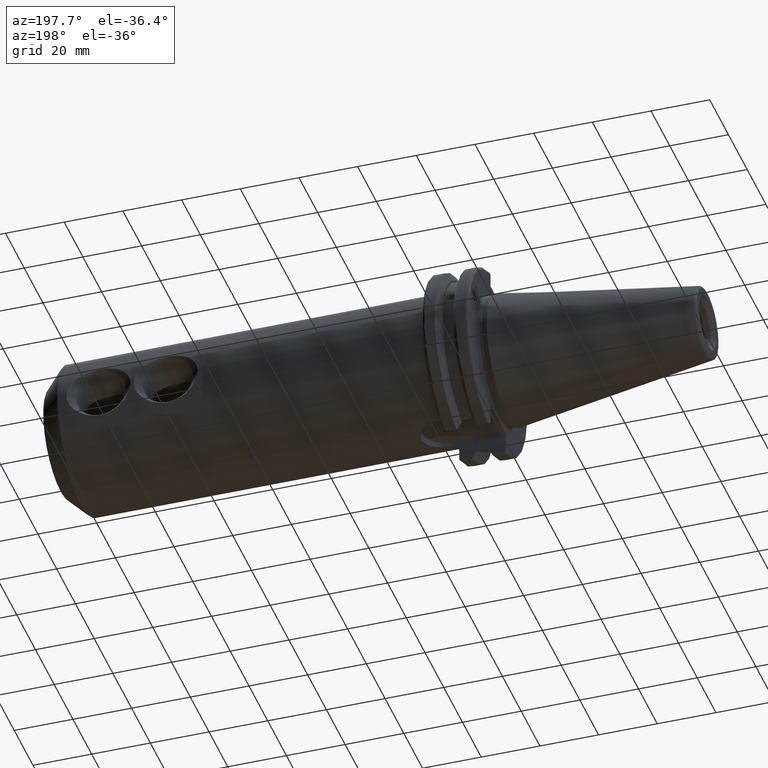
[diagram: clean part render]
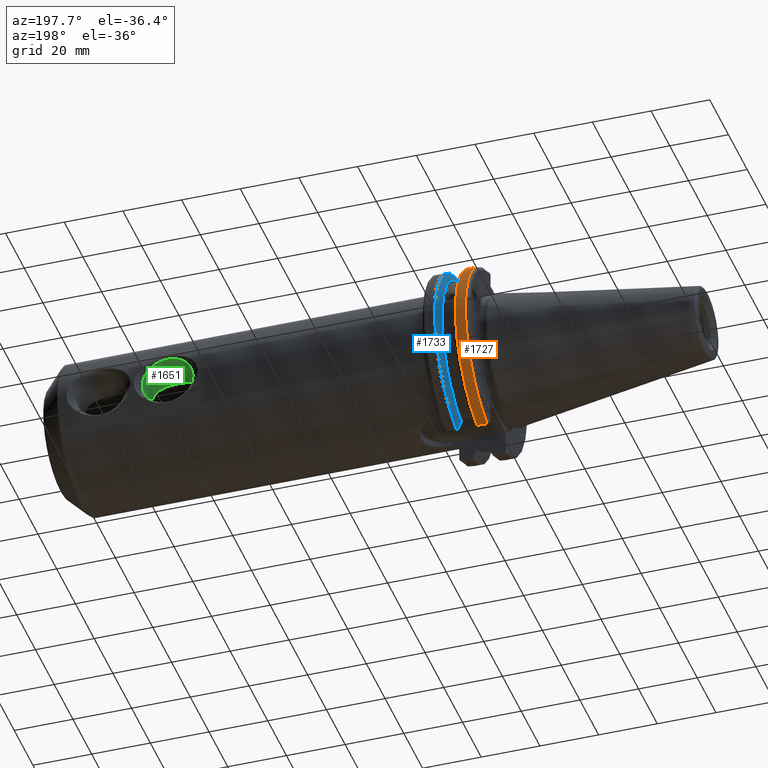
[diagram: same view with three faces highlighted in distinct colors, each labeled with its STEP entity id]
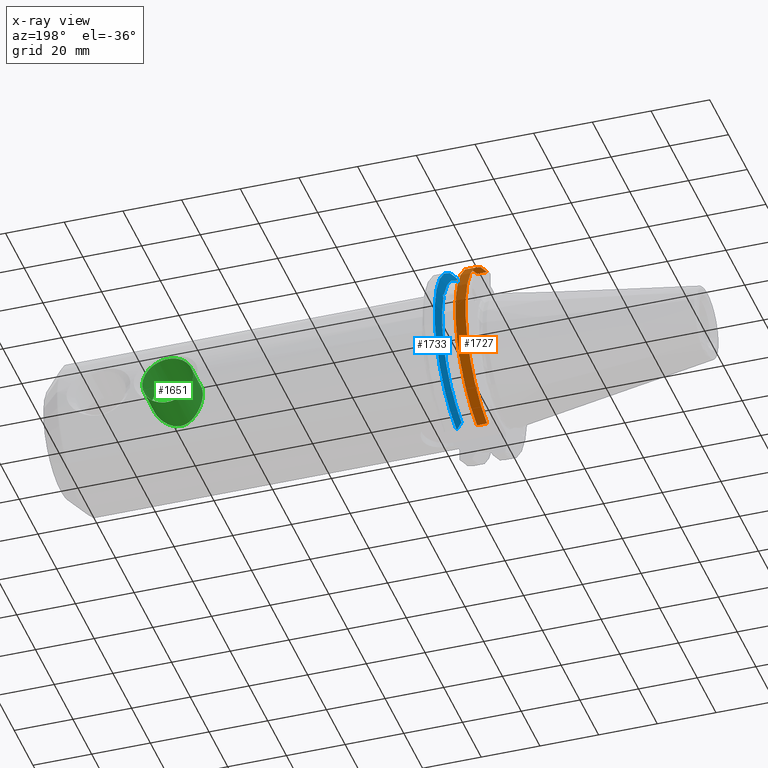
[diagram: x-ray of the same camera — body ghosted, the three highlighted faces saturated]
A machine part, auxiliary view with three faces highlighted in distinct colors.
The next image is the same camera in x-ray (body ghosted, the three faces saturated) — at least one of them is partly hidden behind the body in this view.
Their STEP definitions:

[orange] entity #1727 — the highlighted cylindrical surface (partial cylindrical patch) has radius 31.75 mm, axis along (1, 0, 0).
#143=CYLINDRICAL_SURFACE('',#1932,31.75);
#225=FACE_OUTER_BOUND('',#335,.T.);
#335=EDGE_LOOP('',(#1560,#1561,#1562,#1563));
#400=CIRCLE('',#1875,31.75);
#416=CIRCLE('',#1911,31.75);
#510=LINE('',#3425,#604);
#522=LINE('',#3472,#616);
#604=VECTOR('',#2330,10.);
#616=VECTOR('',#2380,10.);
#800=VERTEX_POINT('',#3207);
#801=VERTEX_POINT('',#3211);
#834=VERTEX_POINT('',#3399);
#835=VERTEX_POINT('',#3408);
#1018=EDGE_CURVE('',#800,#801,#400,.T.);
#1073=EDGE_CURVE('',#834,#835,#416,.T.);
#1076=EDGE_CURVE('',#835,#800,#510,.T.);
#1097=EDGE_CURVE('',#801,#834,#522,.T.);
#1560=ORIENTED_EDGE('',*,*,#1073,.F.);
#1561=ORIENTED_EDGE('',*,*,#1097,.F.);
#1562=ORIENTED_EDGE('',*,*,#1018,.F.);
#1563=ORIENTED_EDGE('',*,*,#1076,.F.);
#1727=ADVANCED_FACE('',(#225),#143,.T.);
#1875=AXIS2_PLACEMENT_3D('',#3212,#2234,#2235);
#1911=AXIS2_PLACEMENT_3D('',#3409,#2326,#2327);
#1932=AXIS2_PLACEMENT_3D('',#3473,#2381,#2382);
#2234=DIRECTION('center_axis',(1.,0.,0.));
#2235=DIRECTION('ref_axis',(0.,0.,-1.));
#2326=DIRECTION('center_axis',(-1.,0.,0.));
#2327=DIRECTION('ref_axis',(0.,1.,1.60812264967664E-16));
#2330=DIRECTION('',(1.,0.,0.));
#2380=DIRECTION('',(-1.,0.,0.));
#2381=DIRECTION('center_axis',(1.,0.,0.));
#2382=DIRECTION('ref_axis',(0.,1.,0.));
#3207=CARTESIAN_POINT('',(7.60793323092436,8.67204822802685,-30.5427254764662));
#3211=CARTESIAN_POINT('',(7.60793323092436,8.67204822802685,30.5427254764662));
#3212=CARTESIAN_POINT('Origin',(7.60793323092436,0.,0.));
#3399=CARTESIAN_POINT('',(4.175,8.67204822802685,30.5427254764662));
#3408=CARTESIAN_POINT('',(4.175,8.67204822802685,-30.5427254764662));
#3409=CARTESIAN_POINT('Origin',(4.175,0.,0.));
#3425=CARTESIAN_POINT('',(5.39146661546218,8.67204822802685,-30.5427254764662));
#3472=CARTESIAN_POINT('',(5.39146661546218,8.67204822802685,30.5427254764662));
#3473=CARTESIAN_POINT('Origin',(5.39146661546218,0.,0.));

[blue] entity #1733 — the highlighted conical surface has half-angle 60 deg.
#35=(
BOUNDED_CURVE()
B_SPLINE_CURVE(2,(#3298,#3299,#3300),.UNSPECIFIED.,.F.,.F.)
B_SPLINE_CURVE_WITH_KNOTS((3,3),(0.329353533631226,0.393258405001025),
 .UNSPECIFIED.)
CURVE()
GEOMETRIC_REPRESENTATION_ITEM()
RATIONAL_B_SPLINE_CURVE((1.00047644010577,1.00028444218285,1.))
REPRESENTATION_ITEM('')
);
#36=(
BOUNDED_CURVE()
B_SPLINE_CURVE(2,(#3312,#3313,#3314),.UNSPECIFIED.,.F.,.F.)
B_SPLINE_CURVE_WITH_KNOTS((3,3),(0.0550586467393769,0.331607789535852),
 .UNSPECIFIED.)
CURVE()
GEOMETRIC_REPRESENTATION_ITEM()
RATIONAL_B_SPLINE_CURVE((1.00031614444922,1.00095203903643,1.))
REPRESENTATION_ITEM('')
);
#40=(
BOUNDED_CURVE()
B_SPLINE_CURVE(2,(#3448,#3449,#3450),.UNSPECIFIED.,.F.,.F.)
B_SPLINE_CURVE_WITH_KNOTS((3,3),(0.,0.276549142795274),.UNSPECIFIED.)
CURVE()
GEOMETRIC_REPRESENTATION_ITEM()
RATIONAL_B_SPLINE_CURVE((1.,1.00095203903599,1.00031614444907))
REPRESENTATION_ITEM('')
);
#41=(
BOUNDED_CURVE()
B_SPLINE_CURVE(2,(#3466,#3467,#3468),.UNSPECIFIED.,.F.,.F.)
B_SPLINE_CURVE_WITH_KNOTS((3,3),(0.,0.0639048713675655),.UNSPECIFIED.)
CURVE()
GEOMETRIC_REPRESENTATION_ITEM()
RATIONAL_B_SPLINE_CURVE((1.,1.00028444218286,1.00047644010578))
REPRESENTATION_ITEM('')
);
#231=FACE_OUTER_BOUND('',#341,.T.);
#341=EDGE_LOOP('',(#1583,#1584,#1585,#1586,#1587,#1588,#1589,#1590,#1591));
#404=CIRCLE('',#1882,28.9593772964944);
#423=CIRCLE('',#1930,31.75);
#430=CIRCLE('',#1945,28.9593772964944);
#656=B_SPLINE_CURVE_WITH_KNOTS('',3,(#3130,#3131,#3132,#3133,#3134,#3135,
#3136,#3137),.UNSPECIFIED.,.F.,.F.,(4,2,2,4),(0.451995700189023,0.464547828547662,
0.504528771685167,0.544509714822672),.UNSPECIFIED.);
#660=B_SPLINE_CURVE_WITH_KNOTS('',3,(#3192,#3193,#3194,#3195,#3196,#3197,
#3198,#3199),.UNSPECIFIED.,.F.,.F.,(4,2,2,4),(0.544509714822672,0.584490657960177,
0.624471601097682,0.637023729456323),.UNSPECIFIED.);
#789=VERTEX_POINT('',#3127);
#790=VERTEX_POINT('',#3129);
#797=VERTEX_POINT('',#3190);
#806=VERTEX_POINT('',#3231);
#818=VERTEX_POINT('',#3295);
#819=VERTEX_POINT('',#3297);
#841=VERTEX_POINT('',#3445);
#842=VERTEX_POINT('',#3447);
#845=VERTEX_POINT('',#3464);
#1006=EDGE_CURVE('',#790,#789,#656,.T.);
#1014=EDGE_CURVE('',#789,#797,#660,.T.);
#1026=EDGE_CURVE('',#806,#790,#404,.T.);
#1046=EDGE_CURVE('',#818,#819,#35,.T.);
#1051=EDGE_CURVE('',#818,#806,#36,.T.);
#1086=EDGE_CURVE('',#842,#841,#40,.T.);
#1095=EDGE_CURVE('',#845,#841,#41,.T.);
#1096=EDGE_CURVE('',#819,#845,#423,.T.);
#1106=EDGE_CURVE('',#797,#842,#430,.T.);
#1583=ORIENTED_EDGE('',*,*,#1006,.T.);
#1584=ORIENTED_EDGE('',*,*,#1014,.T.);
#1585=ORIENTED_EDGE('',*,*,#1106,.T.);
#1586=ORIENTED_EDGE('',*,*,#1086,.T.);
#1587=ORIENTED_EDGE('',*,*,#1095,.F.);
#1588=ORIENTED_EDGE('',*,*,#1096,.F.);
#1589=ORIENTED_EDGE('',*,*,#1046,.F.);
#1590=ORIENTED_EDGE('',*,*,#1051,.T.);
#1591=ORIENTED_EDGE('',*,*,#1026,.T.);
#1646=CONICAL_SURFACE('',#1944,30.3546886482472,1.0471975511966);
#1733=ADVANCED_FACE('',(#231),#1646,.T.);
#1882=AXIS2_PLACEMENT_3D('',#3232,#2250,#2251);
#1930=AXIS2_PLACEMENT_3D('',#3470,#2376,#2377);
#1944=AXIS2_PLACEMENT_3D('',#3490,#2407,#2408);
#1945=AXIS2_PLACEMENT_3D('',#3491,#2409,#2410);
#2250=DIRECTION('center_axis',(1.,0.,0.));
#2251=DIRECTION('ref_axis',(0.,0.,-1.));
#2376=DIRECTION('center_axis',(1.,0.,0.));
#2377=DIRECTION('ref_axis',(0.,0.,-1.));
#2407=DIRECTION('center_axis',(1.,0.,0.));
#2408=DIRECTION('ref_axis',(0.,1.,0.));
#2409=DIRECTION('center_axis',(1.,0.,0.));
#2410=DIRECTION('ref_axis',(0.,0.,-1.));
#3127=CARTESIAN_POINT('',(13.2341,27.51401829017,10.0142836826778));
#3129=CARTESIAN_POINT('',(13.0491,27.4956274489925,9.09043478536244));
#3130=CARTESIAN_POINT('Ctrl Pts',(13.0491,27.4956274489925,9.09043478536245));
#3131=CARTESIAN_POINT('Ctrl Pts',(13.0632204071996,27.5087667900418,9.12860597076217));
#3132=CARTESIAN_POINT('Ctrl Pts',(13.0766929817857,27.5206055003512,9.16696618806877));
#3133=CARTESIAN_POINT('Ctrl Pts',(13.130081441159,27.5642934663232,9.32791534028656));
#3134=CARTESIAN_POINT('Ctrl Pts',(13.1682197084175,27.5867382255984,9.46717946402648));
#3135=CARTESIAN_POINT('Ctrl Pts',(13.2204106446058,27.5847569104122,9.74771639360672));
#3136=CARTESIAN_POINT('Ctrl Pts',(13.2341,27.559599249844,9.8890510252165));
#3137=CARTESIAN_POINT('Ctrl Pts',(13.2341,27.51401829017,10.0142836826778));
#3190=CARTESIAN_POINT('',(13.0491,26.9060914640648,10.7101715919071));
#3192=CARTESIAN_POINT('Ctrl Pts',(13.2341,27.51401829017,10.0142836826778));
#3193=CARTESIAN_POINT('Ctrl Pts',(13.2341,27.4684373304961,10.139516340139));
#3194=CARTESIAN_POINT('Ctrl Pts',(13.2204106446058,27.3968610665578,10.2639559818059));
#3195=CARTESIAN_POINT('Ctrl Pts',(13.1682197084175,27.2180531796526,10.4801333026531));
#3196=CARTESIAN_POINT('Ctrl Pts',(13.130081441159,27.1113422433189,10.5723885976054));
#3197=CARTESIAN_POINT('Ctrl Pts',(13.0766929817857,26.9744191989197,10.6676007180674));
#3198=CARTESIAN_POINT('Ctrl Pts',(13.0632204071996,26.9406927482839,10.6893765730703));
#3199=CARTESIAN_POINT('Ctrl Pts',(13.0491,26.9060914640648,10.7101715919071));
#3231=CARTESIAN_POINT('',(13.0491,8.19,-27.7771386827498));
#3232=CARTESIAN_POINT('Origin',(13.0491,0.,0.));
#3295=CARTESIAN_POINT('',(14.3815146964874,8.19,-30.1755016258903));
#3297=CARTESIAN_POINT('',(14.6602667690756,8.67204822802685,-30.5427254764662));
#3298=CARTESIAN_POINT('Ctrl Pts',(14.3815146964874,8.19,-30.1755016258903));
#3299=CARTESIAN_POINT('Ctrl Pts',(14.5192085187884,8.42917748263464,-30.3577067892692));
#3300=CARTESIAN_POINT('Ctrl Pts',(14.6602667690756,8.67204822802686,-30.5427254764662));
#3312=CARTESIAN_POINT('Ctrl Pts',(14.3815146964874,8.18999999999999,-30.1755016258903));
#3313=CARTESIAN_POINT('Ctrl Pts',(13.687736438474,8.19,-28.9303689539668));
#3314=CARTESIAN_POINT('Ctrl Pts',(13.0491,8.19,-27.7771386827498));
#3445=CARTESIAN_POINT('',(14.3815146964874,8.19,30.1755016258903));
#3447=CARTESIAN_POINT('',(13.0491,8.19,27.7771386827498));
#3448=CARTESIAN_POINT('Ctrl Pts',(13.0491,8.19,27.7771386827498));
#3449=CARTESIAN_POINT('Ctrl Pts',(13.687736438489,8.19,28.9303689539938));
#3450=CARTESIAN_POINT('Ctrl Pts',(14.3815146964874,8.19,30.1755016258903));
#3464=CARTESIAN_POINT('',(14.6602667690756,8.67204822802685,30.5427254764662));
#3466=CARTESIAN_POINT('Ctrl Pts',(14.6602667690756,8.67204822802687,30.5427254764662));
#3467=CARTESIAN_POINT('Ctrl Pts',(14.5192085187837,8.42917748262644,30.357706789263));
#3468=CARTESIAN_POINT('Ctrl Pts',(14.3815146964874,8.19,30.1755016258903));
#3470=CARTESIAN_POINT('Origin',(14.6602667690756,0.,0.));
#3490=CARTESIAN_POINT('Origin',(13.8546833845378,0.,0.));
#3491=CARTESIAN_POINT('Origin',(13.0491,0.,0.));

[green] entity #1651 — the highlighted cylindrical surface (bore or boss wall) has radius 8.6614 mm, axis along (0, 1, 0).
#116=CYLINDRICAL_SURFACE('',#1768,8.6614);
#149=FACE_OUTER_BOUND('',#242,.T.);
#242=EDGE_LOOP('',(#1118,#1119,#1120,#1121,#1122));
#353=CIRCLE('',#1767,8.6614);
#435=LINE('',#2484,#529);
#529=VECTOR('',#1967,8.6614);
#624=B_SPLINE_CURVE_WITH_KNOTS('',3,(#2486,#2487,#2488,#2489,#2490,#2491,
#2492,#2493,#2494,#2495),.UNSPECIFIED.,.F.,.F.,(4,2,2,2,4),(0.,0.342831187342052,
0.685662374684103,1.02424067190905,1.36281896913399),.UNSPECIFIED.);
#625=B_SPLINE_CURVE_WITH_KNOTS('',3,(#2496,#2497,#2498,#2499,#2500,#2501,
#2502,#2503,#2504,#2505,#2506,#2507,#2508,#2509,#2510,#2511,#2512,#2513,
#2514,#2515,#2516,#2517,#2518,#2519,#2520,#2521),.UNSPECIFIED.,.F.,.F.,
(4,2,2,2,2,2,2,2,2,2,2,2,4),(1.36281896913399,1.70139726635893,2.03997556358388,
2.38280675092593,2.72563793826798,3.06846912561003,3.41130031295208,3.74987861017703,
4.08845690740197,4.42703520462691,4.76561350185186,5.10844468919391,5.45127587653596),
 .UNSPECIFIED.);
#677=VERTEX_POINT('',#2460);
#678=VERTEX_POINT('',#2483);
#679=VERTEX_POINT('',#2485);
#853=EDGE_CURVE('',#677,#677,#353,.T.);
#855=EDGE_CURVE('',#677,#678,#435,.T.);
#856=EDGE_CURVE('',#679,#678,#624,.T.);
#857=EDGE_CURVE('',#678,#679,#625,.T.);
#1118=ORIENTED_EDGE('',*,*,#853,.T.);
#1119=ORIENTED_EDGE('',*,*,#855,.T.);
#1120=ORIENTED_EDGE('',*,*,#856,.F.);
#1121=ORIENTED_EDGE('',*,*,#857,.F.);
#1122=ORIENTED_EDGE('',*,*,#855,.F.);
#1651=ADVANCED_FACE('',(#149),#116,.F.);
#1767=AXIS2_PLACEMENT_3D('',#2462,#1963,#1964);
#1768=AXIS2_PLACEMENT_3D('',#2482,#1965,#1966);
#1963=DIRECTION('center_axis',(0.,1.,0.));
#1964=DIRECTION('ref_axis',(-1.,0.,0.));
#1965=DIRECTION('center_axis',(0.,1.,0.));
#1966=DIRECTION('ref_axis',(-1.,0.,0.));
#1967=DIRECTION('',(0.,-1.,0.));
#2460=CARTESIAN_POINT('',(117.0614,23.1814,-1.06071557861349E-15));
#2462=CARTESIAN_POINT('Origin',(108.4,23.1814,0.));
#2482=CARTESIAN_POINT('Origin',(108.4,13.225,0.));
#2483=CARTESIAN_POINT('',(117.0614,12.7,-4.46352160332383E-17));
#2484=CARTESIAN_POINT('',(117.0614,13.225,-1.06071557861349E-15));
#2485=CARTESIAN_POINT('',(108.4,9.28817258883576,8.6614));
#2486=CARTESIAN_POINT('Ctrl Pts',(108.4,9.28817258883576,8.6614));
#2487=CARTESIAN_POINT('Ctrl Pts',(109.542770624474,9.28817258883576,8.6614));
#2488=CARTESIAN_POINT('Ctrl Pts',(110.713192579857,9.52028980979604,8.42510703939285));
#2489=CARTESIAN_POINT('Ctrl Pts',(112.824818648047,10.2403122930747,7.53354592798));
#2490=CARTESIAN_POINT('Ctrl Pts',(113.771511011252,10.7111190531903,6.87755833788624));
#2491=CARTESIAN_POINT('Ctrl Pts',(115.268216927262,11.5350374541816,5.38085242187608));
#2492=CARTESIAN_POINT('Ctrl Pts',(115.930286935993,11.9523850753063,4.43227008771076));
#2493=CARTESIAN_POINT('Ctrl Pts',(116.827767414902,12.5372065673924,2.30715875855382));
#2494=CARTESIAN_POINT('Ctrl Pts',(117.0614,12.7,1.12859432408315));
#2495=CARTESIAN_POINT('Ctrl Pts',(117.0614,12.7,5.55111512312578E-16));
#2496=CARTESIAN_POINT('Ctrl Pts',(117.0614,12.7,1.52655665885959E-15));
#2497=CARTESIAN_POINT('Ctrl Pts',(117.0614,12.7,-1.12859432408314));
#2498=CARTESIAN_POINT('Ctrl Pts',(116.827767414902,12.5372065673924,-2.30715875855383));
#2499=CARTESIAN_POINT('Ctrl Pts',(115.930286935993,11.9523850753063,-4.43227008771077));
#2500=CARTESIAN_POINT('Ctrl Pts',(115.268216927262,11.5350374541816,-5.38085242187607));
#2501=CARTESIAN_POINT('Ctrl Pts',(113.771511011252,10.7111190531903,-6.87755833788624));
#2502=CARTESIAN_POINT('Ctrl Pts',(112.824818648047,10.2403122930747,-7.53354592798));
#2503=CARTESIAN_POINT('Ctrl Pts',(110.713192579857,9.52028980979604,-8.42510703939285));
#2504=CARTESIAN_POINT('Ctrl Pts',(109.542770624474,9.28817258883576,-8.6614));
#2505=CARTESIAN_POINT('Ctrl Pts',(107.257229375527,9.28817258883576,-8.6614));
#2506=CARTESIAN_POINT('Ctrl Pts',(106.086807420143,9.52028980979605,-8.42510703939285));
#2507=CARTESIAN_POINT('Ctrl Pts',(103.975181351953,10.2403122930747,-7.53354592798));
#2508=CARTESIAN_POINT('Ctrl Pts',(103.028488988748,10.7111190531903,-6.87755833788624));
#2509=CARTESIAN_POINT('Ctrl Pts',(101.531783072738,11.5350374541816,-5.38085242187608));
#2510=CARTESIAN_POINT('Ctrl Pts',(100.869713064007,11.9523850753063,-4.43227008771078));
#2511=CARTESIAN_POINT('Ctrl Pts',(99.9722325850977,12.5372065673924,-2.30715875855383));
#2512=CARTESIAN_POINT('Ctrl Pts',(99.7386,12.7,-1.12859432408315));
#2513=CARTESIAN_POINT('Ctrl Pts',(99.7386,12.7,1.12859432408314));
#2514=CARTESIAN_POINT('Ctrl Pts',(99.9722325850977,12.5372065673924,2.30715875855383));
#2515=CARTESIAN_POINT('Ctrl Pts',(100.869713064007,11.9523850753063,4.43227008771077));
#2516=CARTESIAN_POINT('Ctrl Pts',(101.531783072738,11.5350374541816,5.38085242187607));
#2517=CARTESIAN_POINT('Ctrl Pts',(103.028488988748,10.7111190531903,6.87755833788624));
#2518=CARTESIAN_POINT('Ctrl Pts',(103.975181351953,10.2403122930747,7.53354592798));
#2519=CARTESIAN_POINT('Ctrl Pts',(106.086807420143,9.52028980979604,8.42510703939285));
#2520=CARTESIAN_POINT('Ctrl Pts',(107.257229375527,9.28817258883576,8.6614));
#2521=CARTESIAN_POINT('Ctrl Pts',(108.4,9.28817258883576,8.6614));